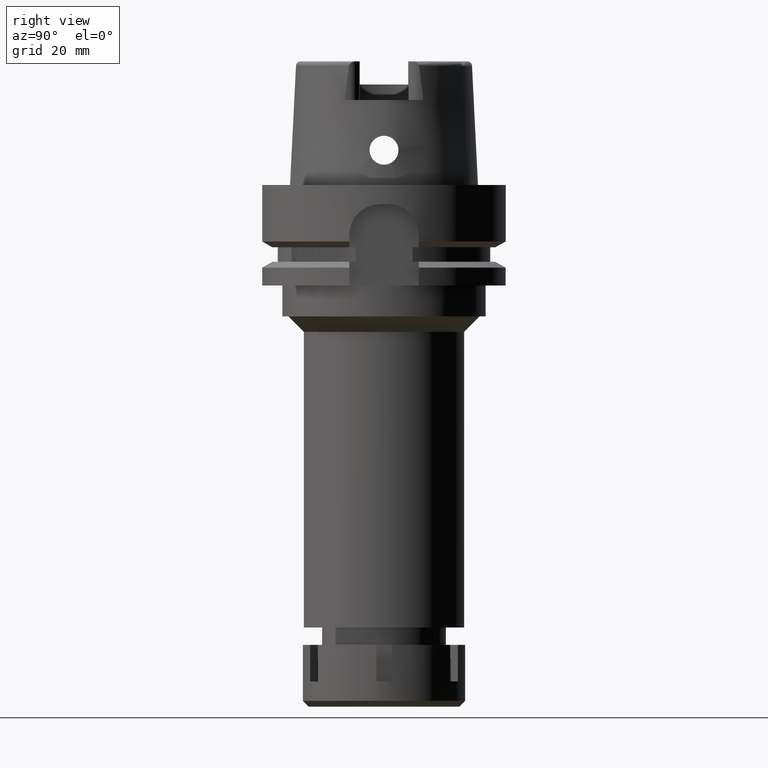
[diagram: clean part render]
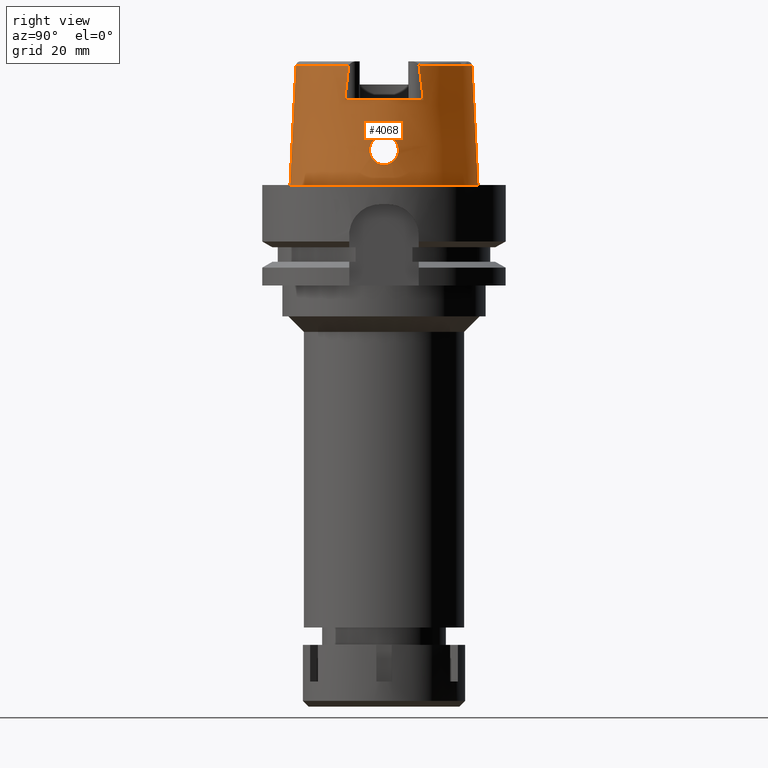
[diagram: same view with one face highlighted and labeled with its STEP entity id]
A machine part, right view. The second image highlights one B-rep face of the part: STEP entity #4068.
In plain terms, the highlighted conical surface has half-angle 2.862 deg.
Its self-contained STEP definition (entity closure, byte-faithful):
#20 = CARTESIAN_POINT ( 'NONE',  ( 23.67751368057999883, 0.0000000000000000000, 12.75000000000000000 ) ) ;
#27 = CARTESIAN_POINT ( 'NONE',  ( 23.61751962359559087, -2.081209400675928745, 12.11947536598795239 ) ) ;
#30 = DIRECTION ( 'NONE',  ( 8.032179027582384478E-05, -0.04993928193351242217, -0.9987522523971473776 ) ) ;
#44 = DIRECTION ( 'NONE',  ( -8.032179027593385064E-05, 0.04993928193351242217, -0.9987522523971473776 ) ) ;
#47 = CARTESIAN_POINT ( 'NONE',  ( 23.54630122449590601, 3.287572051636949322, 10.82044402862209687 ) ) ;
#53 = CARTESIAN_POINT ( 'NONE',  ( 23.56707827843307967, -3.749991273092940336, 9.029127255000700458 ) ) ;
#59 = EDGE_CURVE ( 'NONE', #4802, #4386, #4256, .T. ) ;
#76 = CARTESIAN_POINT ( 'NONE',  ( 23.57429877987538802, 3.748539191185921382, 8.891522037772482179 ) ) ;
#81 = CARTESIAN_POINT ( 'NONE',  ( 23.99375469476897393, -1.454882748744323218, 5.543721527944506455 ) ) ;
#111 = CARTESIAN_POINT ( 'NONE',  ( 23.99515835784144357, -1.437611125505124487, 5.536499203168561145 ) ) ;
#120 = CARTESIAN_POINT ( 'NONE',  ( 20.87000008276669050, 9.137139976961810461, 30.65063927230666962 ) ) ;
#142 = CARTESIAN_POINT ( 'NONE',  ( 23.84693994594415400, -2.674180371128523692, 6.371027580553005443 ) ) ;
#174 = CARTESIAN_POINT ( 'NONE',  ( 23.58431437941266395, -2.644385107882315733, 11.65895182870533553 ) ) ;
#178 = VERTEX_POINT ( 'NONE', #2932 ) ;
#215 = VERTEX_POINT ( 'NONE', #3032 ) ;
#275 = CARTESIAN_POINT ( 'NONE',  ( 20.86974110889999778, -9.111383545063000966, 30.85992740092000020 ) ) ;
#313 = VERTEX_POINT ( 'NONE', #5283 ) ;
#326 = CARTESIAN_POINT ( 'NONE',  ( 24.05252611746999847, 0.0000000000000000000, 5.250000000000000000 ) ) ;
#364 = CARTESIAN_POINT ( 'NONE',  ( 23.60596895123144279, -2.288633734495369332, 11.97317885721946418 ) ) ;
#384 = CARTESIAN_POINT ( 'NONE',  ( 23.91319098594770765, 2.220985600363951207, 5.975451582832275399 ) ) ;
#389 = CARTESIAN_POINT ( 'NONE',  ( 23.62000188271447243, -2.035425921096716717, 12.14961753292255864 ) ) ;
#392 = EDGE_CURVE ( 'NONE', #5492, #178, #4925, .T. ) ;
#410 = B_SPLINE_CURVE_WITH_KNOTS ( 'NONE', 3,
 ( #2059, #120, #3374, #5265 ),
 .UNSPECIFIED., .F., .F.,
 ( 4, 4 ),
 ( 0.0000000000000000000, 1.000000000000000000 ),
 .UNSPECIFIED. ) ;
#414 = CARTESIAN_POINT ( 'NONE',  ( 23.62277832711500380, 1.989117033354609765, 12.18120502760653068 ) ) ;
#429 = CARTESIAN_POINT ( 'NONE',  ( 0.0000000000000000000, 0.0000000000000000000, -7.389644451905000534E-13 ) ) ;
#444 = CARTESIAN_POINT ( 'NONE',  ( 23.64574116981761165, 1.497417026802878137, 12.43820187177436587 ) ) ;
#475 = CARTESIAN_POINT ( 'NONE',  ( 23.53924988573290733, 3.484413238315574812, 10.38628969556312498 ) ) ;
#486 = CARTESIAN_POINT ( 'NONE',  ( 20.86974110889999778, -9.111383545063000966, 30.85992740092000020 ) ) ;
#489 = CARTESIAN_POINT ( 'NONE',  ( 20.86999175384000083, 9.150018522194999449, 30.54599590695999822 ) ) ;
#502 = CARTESIAN_POINT ( 'NONE',  ( 23.57177338731075267, 2.847081383180391612, 11.44160974602868208 ) ) ;
#509 = CARTESIAN_POINT ( 'NONE',  ( 23.55879067858602838, -3.744993421208153705, 9.209173547317250907 ) ) ;
#530 = CIRCLE ( 'NONE', #2208, 22.77198729362000407 ) ;
#532 = CARTESIAN_POINT ( 'NONE',  ( 23.53958799336297147, 3.469600978734524332, 10.42282509566117454 ) ) ;
#540 = CARTESIAN_POINT ( 'NONE',  ( 23.57982168266563860, -3.750068239009498150, 8.777296836066351915 ) ) ;
#567 = ORIENTED_EDGE ( 'NONE', *, *, #59, .T. ) ;
#569 = CARTESIAN_POINT ( 'NONE',  ( 23.76426679225376759, -3.124098820530234022, 6.925737307029941725 ) ) ;
#571 = DIRECTION ( 'NONE',  ( 0.0000000000000000000, -1.000000000000000000, 0.0000000000000000000 ) ) ;
#598 = CARTESIAN_POINT ( 'NONE',  ( 23.75119656815163438, -3.186162049034697130, 7.021884682963101199 ) ) ;
#629 = CARTESIAN_POINT ( 'NONE',  ( 23.56278099271348836, -3.748201672079390701, 9.119866509696864298 ) ) ;
#767 = CARTESIAN_POINT ( 'NONE',  ( 24.02790204734300517, 0.9499289938177079007, 5.370180686946913085 ) ) ;
#830 = CARTESIAN_POINT ( 'NONE',  ( 23.85936835845070547, 2.596971949323717332, 6.294668982617666941 ) ) ;
#859 = EDGE_CURVE ( 'NONE', #313, #2496, #3965, .T. ) ;
#868 = CARTESIAN_POINT ( 'NONE',  ( 23.62275763781049776, -1.983740558953914768, 12.18267102561104132 ) ) ;
#893 = CARTESIAN_POINT ( 'NONE',  ( 23.58844020496418636, -2.579644544183108845, 11.72205615852459637 ) ) ;
#914 = CARTESIAN_POINT ( 'NONE',  ( 23.56160230294862856, 3.015610782114161559, 11.23302042619984853 ) ) ;
#947 = CARTESIAN_POINT ( 'NONE',  ( 23.59610519306026433, 3.723760955760570202, 8.541686959840621540 ) ) ;
#983 = CARTESIAN_POINT ( 'NONE',  ( 23.69493469874370462, -3.426660438448700940, 7.473140575607948755 ) ) ;
#999 = EDGE_CURVE ( 'NONE', #1028, #215, #3453, .T. ) ;
#1008 = CARTESIAN_POINT ( 'NONE',  ( 23.60286895030068166, 2.335580404643407881, 11.93450531687260607 ) ) ;
#1012 = CARTESIAN_POINT ( 'NONE',  ( 23.53993061426493938, -3.456305277240770746, 10.45481928199848021 ) ) ;
#1028 = VERTEX_POINT ( 'NONE', #4701 ) ;
#1031 = LINE ( 'NONE', #2003, #2753 ) ;
#1035 = CARTESIAN_POINT ( 'NONE',  ( 20.87000236792000152, -9.149994681381000916, 30.54552122894999755 ) ) ;
#1044 = CARTESIAN_POINT ( 'NONE',  ( 23.53979371695233525, -3.461505962265991165, 10.44240139557405911 ) ) ;
#1070 = CARTESIAN_POINT ( 'NONE',  ( 20.87000000000000099, -10.16755860605000095, 22.00000000000000000 ) ) ;
#1074 = CARTESIAN_POINT ( 'NONE',  ( 23.53973886479294819, -3.463638976974497741, 10.43727761450573865 ) ) ;
#1107 = CARTESIAN_POINT ( 'NONE',  ( 23.55530539391275724, -3.738556810841080935, 9.298850150406551052 ) ) ;
#1200 = VERTEX_POINT ( 'NONE', #3027 ) ;
#1271 = CARTESIAN_POINT ( 'NONE',  ( 23.75247844388773544, 3.179986791227622955, 7.008842192722118725 ) ) ;
#1273 = CARTESIAN_POINT ( 'NONE',  ( 0.0000000000000000000, 0.0000000000000000000, 30.85992712280000205 ) ) ;
#1292 = CARTESIAN_POINT ( 'NONE',  ( 0.0000000000000000000, 0.0000000000000000000, 22.00000000000000000 ) ) ;
#1335 = CARTESIAN_POINT ( 'NONE',  ( 23.66466856730443169, -0.9480015209956091926, 12.63044045332792464 ) ) ;
#1386 = CARTESIAN_POINT ( 'NONE',  ( 23.55727292430830744, 3.089654960027925057, 11.12871882642762245 ) ) ;
#1410 = CARTESIAN_POINT ( 'NONE',  ( 23.55631868313839661, 3.749673725861494500, 9.242500227184166306 ) ) ;
#1414 = CARTESIAN_POINT ( 'NONE',  ( 23.63217484650144584, -1.797778675049094721, 12.29154642675500142 ) ) ;
#1445 = CARTESIAN_POINT ( 'NONE',  ( 23.66772692760813612, -0.8260351862523239719, 12.65995726960515633 ) ) ;
#1457 = EDGE_LOOP ( 'NONE', ( #1593, #2404, #2370, #5471, #567, #1485, #3401, #2175, #3723, #3446 ) ) ;
#1470 = CARTESIAN_POINT ( 'NONE',  ( 23.55001278305219259, -3.213459768058703148, 10.93680304835307382 ) ) ;
#1485 = ORIENTED_EDGE ( 'NONE', *, *, #5687, .F. ) ;
#1501 = CARTESIAN_POINT ( 'NONE',  ( 23.65218525766250579, -3.578295389284316119, 7.876444167268589425 ) ) ;
#1532 = CARTESIAN_POINT ( 'NONE',  ( 23.54201467875097009, -3.389988276717041948, 10.60494540718658740 ) ) ;
#1560 = CARTESIAN_POINT ( 'NONE',  ( 24.05252611746999492, -0.4682035850645622221, 5.249999999999996447 ) ) ;
#1571 = DIRECTION ( 'NONE',  ( 0.9164655183265837390, -0.4001136759951928745, 0.0000000000000000000 ) ) ;
#1589 = CARTESIAN_POINT ( 'NONE',  ( 23.62407932454509663, -3.661718130325105847, 8.181886837929237544 ) ) ;
#1593 = ORIENTED_EDGE ( 'NONE', *, *, #999, .F. ) ;
#1597 = CARTESIAN_POINT ( 'NONE',  ( 0.0000000000000000000, -24.31503482328999866, -3.410605131648000255E-13 ) ) ;
#1602 = ORIENTED_EDGE ( 'NONE', *, *, #392, .F. ) ;
#1640 = AXIS2_PLACEMENT_3D ( 'NONE', #4503, #3865, #3009 ) ;
#1657 = FACE_BOUND ( 'NONE', #2425, .T. ) ;
#1688 = CARTESIAN_POINT ( 'NONE',  ( 23.98170386271037202, 1.606147211016998977, 5.605672157472583628 ) ) ;
#1749 = CARTESIAN_POINT ( 'NONE',  ( 23.70816712741550703, 3.373459330722624827, 7.360135962478457472 ) ) ;
#1777 = CARTESIAN_POINT ( 'NONE',  ( 23.92638814724640639, 2.115561554795489574, 5.901300326521254469 ) ) ;
#1781 = CARTESIAN_POINT ( 'NONE',  ( 23.64438630111163064, -1.531983613853512338, 12.42431264473655084 ) ) ;
#1789 = EDGE_CURVE ( 'NONE', #1200, #4231, #4779, .T. ) ;
#1805 = CARTESIAN_POINT ( 'NONE',  ( 23.69823552665014788, 3.412894739649213083, 7.445766069759683248 ) ) ;
#1825 = DIRECTION ( 'NONE',  ( 0.8989877876694615244, 0.4379736951246811505, 0.0000000000000000000 ) ) ;
#1862 = CARTESIAN_POINT ( 'NONE',  ( 23.54795101418594427, 3.726731211790009546, 9.483740643491037403 ) ) ;
#1868 = CARTESIAN_POINT ( 'NONE',  ( 23.65916351875775092, -1.131568506829653709, 12.57576969428873959 ) ) ;
#1915 = CARTESIAN_POINT ( 'NONE',  ( 23.58205150924871063, 2.680327882225578939, 11.62267484949121510 ) ) ;
#1920 = CARTESIAN_POINT ( 'NONE',  ( 23.75809613592162961, -3.153638958032633166, 6.970814125286376672 ) ) ;
#1931 = CARTESIAN_POINT ( 'NONE',  ( 20.87000000000000099, 10.16755860605000095, 22.00000000000000000 ) ) ;
#1943 = CARTESIAN_POINT ( 'NONE',  ( 23.53847083392613726, 3.572112042969592061, 10.14297195859395373 ) ) ;
#1949 = CARTESIAN_POINT ( 'NONE',  ( 23.77928022298399924, -3.051549592960856483, 6.816953960067207774 ) ) ;
#1957 = CARTESIAN_POINT ( 'NONE',  ( 20.87000000000000099, 9.824931699591571643, 25.00129770862796263 ) ) ;
#1979 = CARTESIAN_POINT ( 'NONE',  ( 24.03360067099460551, -0.9587316947198950556, 5.338920574265018537 ) ) ;
#2003 = CARTESIAN_POINT ( 'NONE',  ( 0.002481821280839999633, 22.77198688789000158, 30.85992712280000205 ) ) ;
#2007 = EDGE_CURVE ( 'NONE', #6059, #3390, #530, .T. ) ;
#2016 = CARTESIAN_POINT ( 'NONE',  ( 23.94785029665514742, -1.936134681675794278, 5.786112351752315419 ) ) ;
#2044 = CARTESIAN_POINT ( 'NONE',  ( 23.76110266796293757, -3.139288946751882747, 6.948794912276024860 ) ) ;
#2059 = CARTESIAN_POINT ( 'NONE',  ( 20.86999175384000083, 9.150018522194999449, 30.54599590695999822 ) ) ;
#2087 = FACE_OUTER_BOUND ( 'NONE', #1457, .T. ) ;
#2142 = CARTESIAN_POINT ( 'NONE',  ( 23.99856477629326079, 1.394866584811591093, 5.519064789891179323 ) ) ;
#2151 = CARTESIAN_POINT ( 'NONE',  ( 20.86979791523000216, -9.115619747652001337, 30.82498808685999947 ) ) ;
#2171 = CARTESIAN_POINT ( 'NONE',  ( 23.85419298223596840, 2.629639852071625761, 6.326504584623249272 ) ) ;
#2175 = ORIENTED_EDGE ( 'NONE', *, *, #4584, .F. ) ;
#2204 = CARTESIAN_POINT ( 'NONE',  ( 23.99669686191760931, 1.418549355558025304, 5.528652208453433303 ) ) ;
#2208 = AXIS2_PLACEMENT_3D ( 'NONE', #3501, #4409, #1571 ) ;
#2229 = DIRECTION ( 'NONE',  ( 0.0000000000000000000, 0.0000000000000000000, -1.000000000000000000 ) ) ;
#2239 = CARTESIAN_POINT ( 'NONE',  ( 24.01734887443144117, 1.128658019607635898, 5.423340327980231912 ) ) ;
#2263 = CARTESIAN_POINT ( 'NONE',  ( 23.86650366459297246, 2.551096030933735825, 6.251058165379860476 ) ) ;
#2291 = CARTESIAN_POINT ( 'NONE',  ( 23.53933422189671276, 3.626026572432415218, 9.964317727025695959 ) ) ;
#2328 = CARTESIAN_POINT ( 'NONE',  ( 23.64687553256864305, 1.469725341914942307, 12.45014572883841808 ) ) ;
#2348 = EDGE_CURVE ( 'NONE', #6059, #1028, #4703, .T. ) ;
#2355 = CARTESIAN_POINT ( 'NONE',  ( 23.60568910285275024, 2.287295108011638600, 11.97229513510515631 ) ) ;
#2370 = ORIENTED_EDGE ( 'NONE', *, *, #2007, .T. ) ;
#2390 = CARTESIAN_POINT ( 'NONE',  ( 23.73431411250091827, -3.262931480600709921, 7.150631510920314682 ) ) ;
#2404 = ORIENTED_EDGE ( 'NONE', *, *, #2348, .F. ) ;
#2413 = CARTESIAN_POINT ( 'NONE',  ( 23.58328866315468275, 2.660396129912620200, 11.64288689494396145 ) ) ;
#2419 = CARTESIAN_POINT ( 'NONE',  ( 23.72722208300176661, -3.293879359230978743, 7.206501331062347582 ) ) ;
#2425 = EDGE_LOOP ( 'NONE', ( #1602, #3256 ) ) ;
#2446 = CARTESIAN_POINT ( 'NONE',  ( 23.81480233834719584, -2.861202117731190153, 6.575168320445277104 ) ) ;
#2473 = CARTESIAN_POINT ( 'NONE',  ( 23.82549211478077922, -2.800933865487029273, 6.505226040548482302 ) ) ;
#2496 = VERTEX_POINT ( 'NONE', #4430 ) ;
#2511 = CARTESIAN_POINT ( 'NONE',  ( 23.70700358225023052, -3.379399917133006248, 7.369886189654992315 ) ) ;
#2594 = AXIS2_PLACEMENT_3D ( 'NONE', #1273, #4918, #3588 ) ;
#2604 = CARTESIAN_POINT ( 'NONE',  ( 23.88412914059294678, 2.432479066581629379, 6.145090706948534098 ) ) ;
#2628 = CARTESIAN_POINT ( 'NONE',  ( 20.86999175384000083, 9.150018522194999449, 30.54599590695999822 ) ) ;
#2696 = CARTESIAN_POINT ( 'NONE',  ( 23.82389925732696057, 2.813300137742952955, 6.517453740640923421 ) ) ;
#2716 = CONICAL_SURFACE ( 'NONE', #1640, 23.54351105844999736, 0.04996004983832824653 ) ;
#2750 = CARTESIAN_POINT ( 'NONE',  ( 23.53967749511006247, 3.465959308388742777, 10.43166505040752945 ) ) ;
#2753 = VECTOR ( 'NONE', #44, 1000.000000000000000 ) ;
#2780 = CARTESIAN_POINT ( 'NONE',  ( 23.58283423382094668, 2.667714300202541633, 11.63550400016476161 ) ) ;
#2801 = CARTESIAN_POINT ( 'NONE',  ( 0.0000000000000000000, 24.31503482328999866, -7.389644451905000534E-13 ) ) ;
#2811 = CARTESIAN_POINT ( 'NONE',  ( 23.56979158351773407, 3.750036884178496788, 8.975423932546908290 ) ) ;
#2839 = CARTESIAN_POINT ( 'NONE',  ( 23.53886039849949086, 3.504568780246596127, 10.33500209898781108 ) ) ;
#2844 = CARTESIAN_POINT ( 'NONE',  ( 23.95890165967607643, -1.832947053311648977, 5.726470688625394878 ) ) ;
#2869 = CARTESIAN_POINT ( 'NONE',  ( 23.58453806143702636, 3.739855273990313922, 8.718097261074683857 ) ) ;
#2873 = CARTESIAN_POINT ( 'NONE',  ( 23.91154306457127277, -2.246422067382706445, 5.987218365071320214 ) ) ;
#2905 = CARTESIAN_POINT ( 'NONE',  ( 23.84336134369561933, -2.695658929892180922, 6.393055510135552844 ) ) ;
#2926 = CARTESIAN_POINT ( 'NONE',  ( 20.87000000000000099, -9.485453096008674478, 27.85166712968035441 ) ) ;
#2930 = CARTESIAN_POINT ( 'NONE',  ( 23.54570789615192794, -3.703928491128161138, 9.598613782981693987 ) ) ;
#2932 = CARTESIAN_POINT ( 'NONE',  ( 23.67751368057999883, 0.0000000000000000000, 12.75000000000000000 ) ) ;
#2965 = CARTESIAN_POINT ( 'NONE',  ( 23.54701822211436379, -3.272998541767345504, 10.83389878106488879 ) ) ;
#3009 = DIRECTION ( 'NONE',  ( 0.0000000000000000000, -1.000000000000000000, 0.0000000000000000000 ) ) ;
#3027 = CARTESIAN_POINT ( 'NONE',  ( 20.87000000000000099, 10.16755860605000095, 22.00000000000000000 ) ) ;
#3032 = CARTESIAN_POINT ( 'NONE',  ( 20.87000000000000099, -10.16755860605000095, 22.00000000000000000 ) ) ;
#3061 = EDGE_CURVE ( 'NONE', #1200, #215, #5566, .T. ) ;
#3130 = CARTESIAN_POINT ( 'NONE',  ( 23.83805058928416543, 2.730133117203835891, 6.426273760224660236 ) ) ;
#3158 = CARTESIAN_POINT ( 'NONE',  ( 24.05252611746999136, 0.2332082558146015006, 5.249999999999998224 ) ) ;
#3190 = CARTESIAN_POINT ( 'NONE',  ( 23.64876270438115569, -1.422550190644729318, 12.46971456139952039 ) ) ;
#3196 = CARTESIAN_POINT ( 'NONE',  ( -0.002481821280835999795, -22.77198688789000158, 30.85992712280000205 ) ) ;
#3216 = CARTESIAN_POINT ( 'NONE',  ( 24.04783581839818751, 0.4716426144665931131, 5.271818400119831161 ) ) ;
#3256 = ORIENTED_EDGE ( 'NONE', *, *, #5157, .F. ) ;
#3269 = CARTESIAN_POINT ( 'NONE',  ( 23.66770947321636598, 0.9495137581037211838, 12.66633947292804763 ) ) ;
#3275 = CARTESIAN_POINT ( 'NONE',  ( 23.62941826959122693, -1.853894654325167757, 12.26037398147006030 ) ) ;
#3331 = CARTESIAN_POINT ( 'NONE',  ( 23.59513389454635757, -3.730065015496567771, 8.542758020531097785 ) ) ;
#3360 = CARTESIAN_POINT ( 'NONE',  ( 23.67836587819210692, -3.488093159694248602, 7.622979705820700502 ) ) ;
#3374 = CARTESIAN_POINT ( 'NONE',  ( 20.86991378048042378, 9.124261431126969413, 30.75528263765333392 ) ) ;
#3390 = VERTEX_POINT ( 'NONE', #4962 ) ;
#3396 = CARTESIAN_POINT ( 'NONE',  ( 23.54014370228184205, -3.448436697873957346, 10.47346664687639084 ) ) ;
#3401 = ORIENTED_EDGE ( 'NONE', *, *, #859, .T. ) ;
#3426 = CARTESIAN_POINT ( 'NONE',  ( 23.54900819717179772, -3.721293834454912908, 9.478482976483848077 ) ) ;
#3446 = ORIENTED_EDGE ( 'NONE', *, *, #3061, .T. ) ;
#3453 = B_SPLINE_CURVE_WITH_KNOTS ( 'NONE', 3,
 ( #1035, #2926, #5277, #1070 ),
 .UNSPECIFIED., .F., .F.,
 ( 4, 4 ),
 ( 0.0000000000000000000, 1.000000000000000000 ),
 .UNSPECIFIED. ) ;
#3455 = CARTESIAN_POINT ( 'NONE',  ( 23.68360975932471035, -3.468792754115879173, 7.575212639652771252 ) ) ;
#3489 = B_SPLINE_CURVE_WITH_KNOTS ( 'NONE', 3,
 ( #4183, #4214, #5648, #1445, #1335, #1868, #4122, #4245, #5998, #5538, #3190, #5081, #1781, #3739, #1414, #3275, #6057, #868, #389, #4621, #3768, #27, #4156, #364, #6026, #5569, #893, #3707, #3828, #174, #5734, #5311, #1470, #2965, #3857, #1532, #4790, #3396, #1012, #1044, #1074, #5281, #4399, #2930, #3426, #1107, #509, #629, #5799, #53, #540, #3331, #1589, #4856, #1501, #4365, #4822, #3360, #3800, #5704, #3455, #983, #2511, #2419, #2390, #5675, #598, #1920, #2044, #3892, #569, #1949, #5219, #2446, #2473, #5251, #2905, #142, #3919, #4272, #2873, #2016, #2844, #4732, #4760, #5772, #4301, #81, #4331, #111, #1979, #1560, #4889 ),
 .UNSPECIFIED., .F., .F.,
 ( 4, 2, 2, 1, 1, 1, 2, 2, 2, 2, 1, 1, 2, 2, 2, 1, 1, 2, 2, 2, 2, 1, 1, 1, 2, 2, 2, 2, 1, 2, 2, 2, 2, 1, 1, 1, 2, 2, 2, 2, 1, 1, 2, 2, 2, 1, 1, 2, 2, 2, 2, 1, 1, 1, 2, 2, 4 ),
 ( 0.0000000000000000000, 0.06249999999999537870, 0.09374999999999306111, 0.1093749999999919231, 0.1171874999999913403, 0.1210937499999910349, 0.1230468749999908684, 0.1249999999999907158, 0.1562499999999905076, 0.1718749999999903966, 0.1796874999999904243, 0.1835937499999905353, 0.1855468749999904243, 0.1874999999999902855, 0.2187499999999891476, 0.2343749999999884537, 0.2421874999999880651, 0.2460937499999877875, 0.2499999999999875655, 0.3124999999999826805, 0.3437499999999804046, 0.3593749999999792943, 0.3671874999999787392, 0.3710937499999786837, 0.3730468749999786282, 0.3749999999999785727, 0.4374999999999827915, 0.4687499999999849010, 0.4843749999999859557, 0.4921874999999866773, 0.4999999999999874545, 0.5624999999999955591, 0.5937499999999994449, 0.6093750000000011102, 0.6171875000000022204, 0.6210937500000026645, 0.6230468750000028866, 0.6250000000000031086, 0.6562500000000051070, 0.6718750000000061062, 0.6796875000000066613, 0.6835937500000071054, 0.6855468750000072164, 0.6875000000000074385, 0.7187500000000073275, 0.7343750000000074385, 0.7421875000000074385, 0.7460937500000074385, 0.7500000000000074385, 0.8125000000000067724, 0.8437500000000063283, 0.8593750000000062172, 0.8671875000000059952, 0.8710937500000059952, 0.8730468750000059952, 0.8750000000000058842, 1.000000000000000000 ),
 .UNSPECIFIED. ) ;
#3501 = CARTESIAN_POINT ( 'NONE',  ( 0.0000000000000000000, 0.0000000000000000000, 30.85992712280000205 ) ) ;
#3565 = CARTESIAN_POINT ( 'NONE',  ( 20.86997922484999890, -9.137002228667000736, 30.65040319040999961 ) ) ;
#3587 = CARTESIAN_POINT ( 'NONE',  ( 23.80252444912407128, 2.931015324959129309, 6.660032572112318583 ) ) ;
#3588 = DIRECTION ( 'NONE',  ( 0.0000000000000000000, 1.000000000000000000, 0.0000000000000000000 ) ) ;
#3645 = CARTESIAN_POINT ( 'NONE',  ( 23.68855773261116582, 3.450345891737807147, 7.530735757492126758 ) ) ;
#3653 = LINE ( 'NONE', #3196, #4978 ) ;
#3674 = CARTESIAN_POINT ( 'NONE',  ( 23.65754914882853654, 3.566084928892875983, 7.809417686864185804 ) ) ;
#3701 = CARTESIAN_POINT ( 'NONE',  ( 23.54167533943243740, 3.387224531552467166, 10.62138329613025967 ) ) ;
#3707 = CARTESIAN_POINT ( 'NONE',  ( 23.58633481952149324, -2.612806086845506304, 11.68997785611947826 ) ) ;
#3723 = ORIENTED_EDGE ( 'NONE', *, *, #1789, .F. ) ;
#3731 = CARTESIAN_POINT ( 'NONE',  ( 23.57821927899097858, 2.742205991894004047, 11.55832218472673745 ) ) ;
#3739 = CARTESIAN_POINT ( 'NONE',  ( 23.63992076725179814, -1.634345343186944355, 12.37735983794779671 ) ) ;
#3748 = CARTESIAN_POINT ( 'NONE',  ( 20.87000000000000099, 9.485745710466582992, 27.84996233038690150 ) ) ;
#3762 = CARTESIAN_POINT ( 'NONE',  ( 23.58088529909393571, 2.699132753027755349, 11.60341009100745424 ) ) ;
#3768 = CARTESIAN_POINT ( 'NONE',  ( 23.61798710720865202, -2.072640986039661737, 12.12517824671028954 ) ) ;
#3796 = CARTESIAN_POINT ( 'NONE',  ( 23.57120184079807146, 3.749755573837370015, 8.948554177804066256 ) ) ;
#3800 = CARTESIAN_POINT ( 'NONE',  ( 23.68088708444757984, -3.478847398681014891, 7.599932335838059494 ) ) ;
#3822 = CARTESIAN_POINT ( 'NONE',  ( 23.61138171876325131, 2.188930179217297933, 12.04546251853728478 ) ) ;
#3828 = CARTESIAN_POINT ( 'NONE',  ( 23.58493108955173057, -2.634781396634718220, 11.66845713958791642 ) ) ;
#3857 = CARTESIAN_POINT ( 'NONE',  ( 23.54351736284860408, -3.352606904402941623, 10.68101992639895315 ) ) ;
#3865 = DIRECTION ( 'NONE',  ( 0.0000000000000000000, 0.0000000000000000000, -1.000000000000000000 ) ) ;
#3892 = CARTESIAN_POINT ( 'NONE',  ( 23.76311803919615784, -3.129629745719058942, 6.934087354747610732 ) ) ;
#3919 = CARTESIAN_POINT ( 'NONE',  ( 23.84848252453461726, -2.664876084156627911, 6.361583425365314071 ) ) ;
#3965 = CIRCLE ( 'NONE', #2594, 22.77198729362000051 ) ;
#4033 = CARTESIAN_POINT ( 'NONE',  ( 20.86989359502999974, -9.124126100501998238, 30.75510751731999903 ) ) ;
#4056 = CARTESIAN_POINT ( 'NONE',  ( 23.79537487801190565, 2.969081839856078986, 6.708526363462252284 ) ) ;
#4068 = ADVANCED_FACE ( 'NONE', ( #2087, #1657 ), #2716, .T. ) ;
#4089 = CARTESIAN_POINT ( 'NONE',  ( 23.89161689549474943, 2.379555829655331856, 6.100904176340963048 ) ) ;
#4118 = CARTESIAN_POINT ( 'NONE',  ( 23.71825165375955180, 3.331218674121533052, 7.276832086006630895 ) ) ;
#4122 = CARTESIAN_POINT ( 'NONE',  ( 23.65618161746163395, -1.223503328314907046, 12.54583698890080257 ) ) ;
#4150 = CARTESIAN_POINT ( 'NONE',  ( 23.85298168054950452, 2.637213789784339735, 6.333979974390357981 ) ) ;
#4155 = CARTESIAN_POINT ( 'NONE',  ( 20.87000236792000152, -9.145647815675998160, 30.58042815478000165 ) ) ;
#4156 = CARTESIAN_POINT ( 'NONE',  ( 23.61157157974156817, -2.189802232176465413, 12.04670364027146690 ) ) ;
#4183 = CARTESIAN_POINT ( 'NONE',  ( 23.67751368057999883, 0.0000000000000000000, 12.75000000000000000 ) ) ;
#4214 = CARTESIAN_POINT ( 'NONE',  ( 23.67751368058000239, -0.2270527362303306484, 12.74999999999999822 ) ) ;
#4231 = VERTEX_POINT ( 'NONE', #2628 ) ;
#4240 = CARTESIAN_POINT ( 'NONE',  ( 23.63968805518191019, 1.640290316339456211, 12.37324556414428756 ) ) ;
#4245 = CARTESIAN_POINT ( 'NONE',  ( 23.65230132282630748, -1.330737351315197214, 12.50621223589727471 ) ) ;
#4256 = CIRCLE ( 'NONE', #4357, 24.31503482328999866 ) ;
#4264 = CARTESIAN_POINT ( 'NONE',  ( 23.62817011169800452, 1.885504624516869399, 12.24383662026350272 ) ) ;
#4272 = CARTESIAN_POINT ( 'NONE',  ( 23.88313405248720045, -2.454470983766329439, 6.151043544488926429 ) ) ;
#4296 = CARTESIAN_POINT ( 'NONE',  ( 23.67751368057999528, 0.4544704546232919973, 12.75000000000000000 ) ) ;
#4301 = CARTESIAN_POINT ( 'NONE',  ( 23.99223682762422527, -1.473405419263118743, 5.551537743780283307 ) ) ;
#4331 = CARTESIAN_POINT ( 'NONE',  ( 23.99475839488884432, -1.442550788853861343, 5.538556383448489662 ) ) ;
#4357 = AXIS2_PLACEMENT_3D ( 'NONE', #429, #4793, #571 ) ;
#4365 = CARTESIAN_POINT ( 'NONE',  ( 23.66128946271772548, -3.548542694242324380, 7.784353514660313778 ) ) ;
#4386 = VERTEX_POINT ( 'NONE', #2801 ) ;
#4399 = CARTESIAN_POINT ( 'NONE',  ( 23.53850048351468160, -3.633705338839023025, 9.958323757797542086 ) ) ;
#4409 = DIRECTION ( 'NONE',  ( 0.0000000000000000000, 0.0000000000000000000, -1.000000000000000000 ) ) ;
#4430 = CARTESIAN_POINT ( 'NONE',  ( 20.86974092012000170, 9.111384045666000020, 30.85992712280000205 ) ) ;
#4497 = CARTESIAN_POINT ( 'NONE',  ( 23.87245292111399664, 2.511601212707295527, 6.215112261049897668 ) ) ;
#4503 = CARTESIAN_POINT ( 'NONE',  ( 0.0000000000000000000, 0.0000000000000000000, 15.42996356139999925 ) ) ;
#4527 = CARTESIAN_POINT ( 'NONE',  ( 23.85626869006094708, 2.616580360089957313, 6.313721774120314656 ) ) ;
#4584 = EDGE_CURVE ( 'NONE', #4231, #2496, #410, .T. ) ;
#4613 = CARTESIAN_POINT ( 'NONE',  ( 24.00419405125347438, 1.321269042240415637, 5.490228995178275895 ) ) ;
#4621 = CARTESIAN_POINT ( 'NONE',  ( 23.61879629122336155, -2.057734708758698350, 12.13501317367127719 ) ) ;
#4672 = CARTESIAN_POINT ( 'NONE',  ( 23.61434003776744817, 2.137342432453318786, 12.08185095785749041 ) ) ;
#4700 = CARTESIAN_POINT ( 'NONE',  ( 23.53837741267485839, 3.542828549026876495, 10.23197012100523828 ) ) ;
#4701 = CARTESIAN_POINT ( 'NONE',  ( 20.87000236792000152, -9.149994681381000916, 30.54552122894999755 ) ) ;
#4703 = B_SPLINE_CURVE_WITH_KNOTS ( 'NONE', 3,
 ( #275, #2151, #4033, #3565, #4155, #6025 ),
 .UNSPECIFIED., .F., .F.,
 ( 4, 1, 1, 4 ),
 ( 0.0000000000000000000, 0.3333333333333000081, 0.6666666666667000474, 1.000000000000000000 ),
 .UNSPECIFIED. ) ;
#4732 = CARTESIAN_POINT ( 'NONE',  ( 23.97390213269688175, -1.680134168084764790, 5.646949681200375437 ) ) ;
#4751 = CARTESIAN_POINT ( 'NONE',  ( 23.54081187450104551, 3.655762180319633625, 9.844340283723548524 ) ) ;
#4756 = EDGE_CURVE ( 'NONE', #3390, #4802, #3653, .T. ) ;
#4760 = CARTESIAN_POINT ( 'NONE',  ( 23.98100822632964935, -1.604214797280628435, 5.609672425852084920 ) ) ;
#4779 = B_SPLINE_CURVE_WITH_KNOTS ( 'NONE', 3,
 ( #1931, #1957, #3748, #489 ),
 .UNSPECIFIED., .F., .F.,
 ( 4, 4 ),
 ( 0.0000000000000000000, 1.000000000000000000 ),
 .UNSPECIFIED. ) ;
#4790 = CARTESIAN_POINT ( 'NONE',  ( 23.54069510199042981, -3.429599916614872956, 10.51711702598395881 ) ) ;
#4793 = DIRECTION ( 'NONE',  ( 0.0000000000000000000, 0.0000000000000000000, 1.000000000000000000 ) ) ;
#4802 = VERTEX_POINT ( 'NONE', #1597 ) ;
#4822 = CARTESIAN_POINT ( 'NONE',  ( 23.67256478192656033, -3.509053511685973792, 7.676768709361416754 ) ) ;
#4856 = CARTESIAN_POINT ( 'NONE',  ( 23.63472398657429707, -3.632551115878716708, 8.060119795143558363 ) ) ;
#4889 = CARTESIAN_POINT ( 'NONE',  ( 24.05252611746999847, 0.0000000000000000000, 5.250000000000000000 ) ) ;
#4918 = DIRECTION ( 'NONE',  ( 0.0000000000000000000, 0.0000000000000000000, -1.000000000000000000 ) ) ;
#4925 = B_SPLINE_CURVE_WITH_KNOTS ( 'NONE', 3,
 ( #326, #3158, #3216, #5101, #767, #2239, #5899, #4613, #5444, #2142, #5076, #2204, #1688, #5047, #1777, #384, #4089, #2604, #4497, #2263, #830, #4527, #2171, #4150, #3130, #2696, #3587, #4056, #6021, #5478, #1271, #5967, #4118, #1749, #1805, #5994, #3645, #3674, #5016, #5534, #947, #2869, #5615, #76, #3796, #2811, #1410, #1862, #4751, #2291, #1943, #4700, #2839, #475, #6079, #532, #2750, #3701, #47, #1386, #914, #5159, #502, #5671, #3731, #3762, #1915, #2780, #2413, #5593, #5215, #1008, #2355, #3822, #4672, #414, #4264, #5643, #4240, #6051, #444, #2328, #3269, #4296, #20 ),
 .UNSPECIFIED., .F., .F.,
 ( 4, 2, 2, 1, 1, 1, 2, 2, 2, 2, 2, 1, 1, 2, 2, 2, 2, 2, 2, 1, 2, 2, 2, 2, 1, 2, 2, 2, 2, 1, 1, 1, 2, 2, 2, 2, 2, 1, 1, 2, 2, 2, 2, 2, 2, 1, 2, 2, 4 ),
 ( 0.0000000000000000000, 0.06249999999999754363, 0.09374999999999633626, 0.1093749999999956701, 0.1171874999999953371, 0.1210937499999951983, 0.1230468749999951011, 0.1249999999999949901, 0.1874999999999924505, 0.2187499999999910905, 0.2343749999999905353, 0.2421874999999902300, 0.2460937499999900357, 0.2480468749999899247, 0.2499999999999898137, 0.2812499999999882316, 0.2968749999999874545, 0.3124999999999866773, 0.3437499999999854006, 0.3593749999999848455, 0.3671874999999846234, 0.3749999999999844569, 0.4374999999999825695, 0.4687499999999819034, 0.4843749999999818479, 0.4921874999999818479, 0.4999999999999817923, 0.5624999999999821254, 0.5937499999999822364, 0.6093749999999824585, 0.6171874999999826805, 0.6210937499999829026, 0.6230468749999827915, 0.6249999999999827915, 0.6874999999999878986, 0.7187499999999906741, 0.7343749999999920064, 0.7421874999999925615, 0.7460937499999928946, 0.7480468749999930056, 0.7499999999999931166, 0.7812499999999943379, 0.7968749999999950040, 0.8124999999999955591, 0.8437499999999965583, 0.8593749999999970024, 0.8671874999999971134, 0.8749999999999972244, 1.000000000000000000 ),
 .UNSPECIFIED. ) ;
#4962 = CARTESIAN_POINT ( 'NONE',  ( 0.0000000000000000000, -22.77198729362000051, 30.85992712280000205 ) ) ;
#4978 = VECTOR ( 'NONE', #30, 1000.000000000000000 ) ;
#5016 = CARTESIAN_POINT ( 'NONE',  ( 23.63403274438405788, 3.638170083091610163, 8.058106359197729773 ) ) ;
#5047 = CARTESIAN_POINT ( 'NONE',  ( 23.96242293413265045, 1.805088116609698812, 5.703893459631730778 ) ) ;
#5076 = CARTESIAN_POINT ( 'NONE',  ( 23.99741052300608146, 1.409557545798487688, 5.524987733621387065 ) ) ;
#5081 = CARTESIAN_POINT ( 'NONE',  ( 23.64838886669894791, -1.431954555999159107, 12.46583997595620907 ) ) ;
#5101 = CARTESIAN_POINT ( 'NONE',  ( 24.03376492118276175, 0.8302503275804992144, 5.341037634394287359 ) ) ;
#5127 = CARTESIAN_POINT ( 'NONE',  ( 24.05252611746999847, 0.0000000000000000000, 5.250000000000000000 ) ) ;
#5157 = EDGE_CURVE ( 'NONE', #178, #5492, #3489, .T. ) ;
#5159 = CARTESIAN_POINT ( 'NONE',  ( 23.56910458896343386, 2.890915830154840993, 11.38946705694332273 ) ) ;
#5215 = CARTESIAN_POINT ( 'NONE',  ( 23.59448695885403069, 2.477570689451470187, 11.81765374097003374 ) ) ;
#5219 = CARTESIAN_POINT ( 'NONE',  ( 23.79345960972958451, -2.978224046644991851, 6.717933730429368033 ) ) ;
#5251 = CARTESIAN_POINT ( 'NONE',  ( 23.83799574183840875, -2.727673456117641226, 6.426295646134737360 ) ) ;
#5265 = CARTESIAN_POINT ( 'NONE',  ( 20.86974092012000170, 9.111384045666000020, 30.85992712280000205 ) ) ;
#5277 = CARTESIAN_POINT ( 'NONE',  ( 20.87000000000000099, -9.824613402788342498, 25.00316005336368619 ) ) ;
#5281 = CARTESIAN_POINT ( 'NONE',  ( 23.53728686231962897, -3.562649023952504379, 10.19725586396877048 ) ) ;
#5283 = CARTESIAN_POINT ( 'NONE',  ( 0.002481821280839999633, 22.77198688789000158, 30.85992712280000205 ) ) ;
#5311 = CARTESIAN_POINT ( 'NONE',  ( 23.56097843014776672, -3.013414992266952197, 11.24542846702971133 ) ) ;
#5444 = CARTESIAN_POINT ( 'NONE',  ( 24.00028241511352078, 1.372815958701181449, 5.510255814242761119 ) ) ;
#5471 = ORIENTED_EDGE ( 'NONE', *, *, #4756, .T. ) ;
#5478 = CARTESIAN_POINT ( 'NONE',  ( 23.77366700043367942, 3.079173082253712668, 6.858779674813768601 ) ) ;
#5492 = VERTEX_POINT ( 'NONE', #5127 ) ;
#5534 = CARTESIAN_POINT ( 'NONE',  ( 23.60482830942745380, 3.707230106430873917, 8.421915893667563324 ) ) ;
#5538 = CARTESIAN_POINT ( 'NONE',  ( 23.64936481906594778, -1.407256274788078798, 12.47594562091538251 ) ) ;
#5566 = CIRCLE ( 'NONE', #5852, 23.21499834174998966 ) ;
#5569 = CARTESIAN_POINT ( 'NONE',  ( 23.59335130441329653, -2.500895128765019848, 11.79546913090828575 ) ) ;
#5593 = CARTESIAN_POINT ( 'NONE',  ( 23.58900358616900306, 2.568407614675035866, 11.73510720999080092 ) ) ;
#5615 = CARTESIAN_POINT ( 'NONE',  ( 23.57913388135730415, 3.745727953488142692, 8.805494264415173689 ) ) ;
#5643 = CARTESIAN_POINT ( 'NONE',  ( 23.63590717609945457, 1.723178002157525368, 12.33120601282623419 ) ) ;
#5648 = CARTESIAN_POINT ( 'NONE',  ( 23.67506699233702960, -0.4637114324894446860, 12.72933735192041382 ) ) ;
#5671 = CARTESIAN_POINT ( 'NONE',  ( 23.57602863934530291, 2.777759321683796134, 11.51947629268215856 ) ) ;
#5675 = CARTESIAN_POINT ( 'NONE',  ( 23.74548095062256792, -3.212431580017934163, 7.065089211984829198 ) ) ;
#5687 = EDGE_CURVE ( 'NONE', #313, #4386, #1031, .T. ) ;
#5704 = CARTESIAN_POINT ( 'NONE',  ( 23.68257567131603025, -3.472624925426743392, 7.584569035647996671 ) ) ;
#5734 = CARTESIAN_POINT ( 'NONE',  ( 23.57093148058753584, -2.851312322621746720, 11.45125664449058434 ) ) ;
#5772 = CARTESIAN_POINT ( 'NONE',  ( 23.98860891886535640, -1.516794078481073615, 5.570259398211658386 ) ) ;
#5799 = CARTESIAN_POINT ( 'NONE',  ( 23.56555343089938859, -3.749630948751757398, 9.060427666582681283 ) ) ;
#5852 = AXIS2_PLACEMENT_3D ( 'NONE', #1292, #2229, #1825 ) ;
#5899 = CARTESIAN_POINT ( 'NONE',  ( 24.01163257243768712, 1.217823858187188968, 5.452279870741744361 ) ) ;
#5967 = CARTESIAN_POINT ( 'NONE',  ( 23.73862460721920087, 3.243260586657136901, 7.113452140663918399 ) ) ;
#5994 = CARTESIAN_POINT ( 'NONE',  ( 23.69164844293517547, 3.438539706537261598, 7.503357657821284832 ) ) ;
#5998 = CARTESIAN_POINT ( 'NONE',  ( 23.65026082306117416, -1.384310148516624261, 12.48520600130237845 ) ) ;
#6021 = CARTESIAN_POINT ( 'NONE',  ( 23.78102646569857725, 3.042778602954465672, 6.807331130308735823 ) ) ;
#6025 = CARTESIAN_POINT ( 'NONE',  ( 20.87000236792000152, -9.149994681381000916, 30.54552122894999755 ) ) ;
#6026 = CARTESIAN_POINT ( 'NONE',  ( 23.59755830408318644, -2.431103675930728070, 11.85587449633170465 ) ) ;
#6051 = CARTESIAN_POINT ( 'NONE',  ( 23.64333745458699099, 1.554894452985533748, 12.41259331056408755 ) ) ;
#6057 = CARTESIAN_POINT ( 'NONE',  ( 23.62502149923574635, -1.940117838062535904, 12.20929256169129751 ) ) ;
#6059 = VERTEX_POINT ( 'NONE', #486 ) ;
#6079 = CARTESIAN_POINT ( 'NONE',  ( 23.53944852190178594, 3.475555214846428598, 10.40821807722831238 ) ) ;